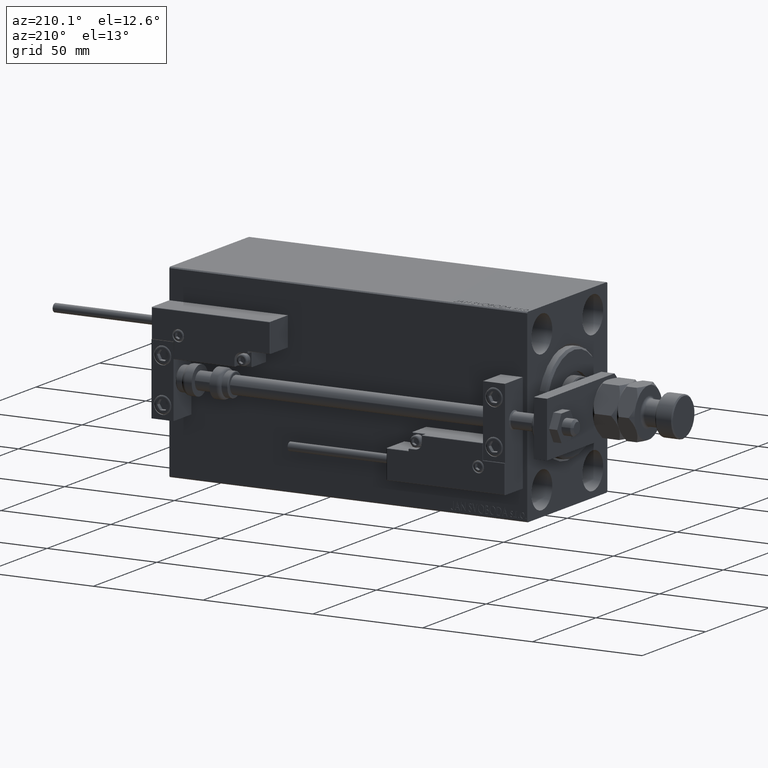
[diagram: clean part render]
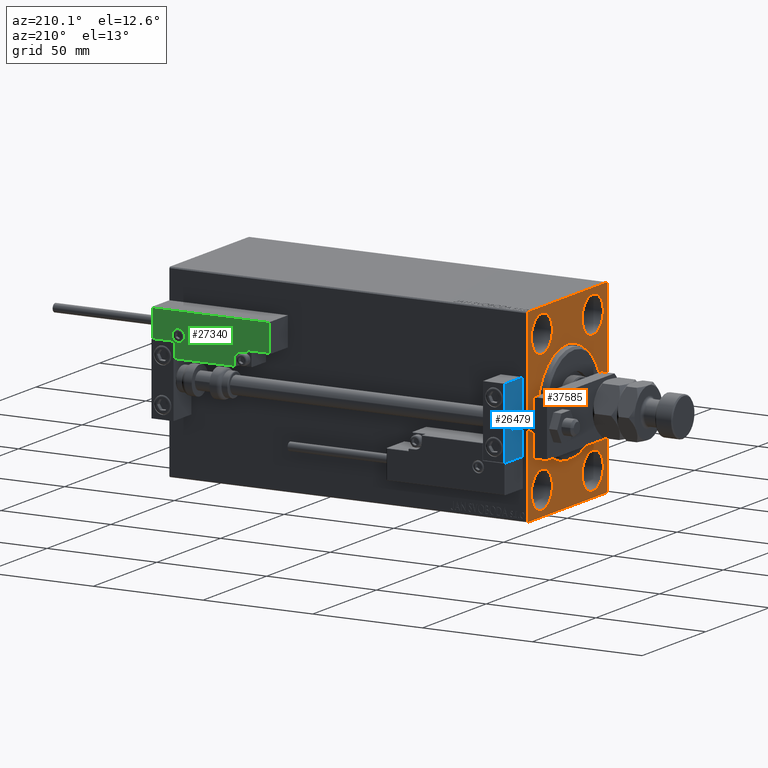
[diagram: same view with three faces highlighted in distinct colors, each labeled with its STEP entity id]
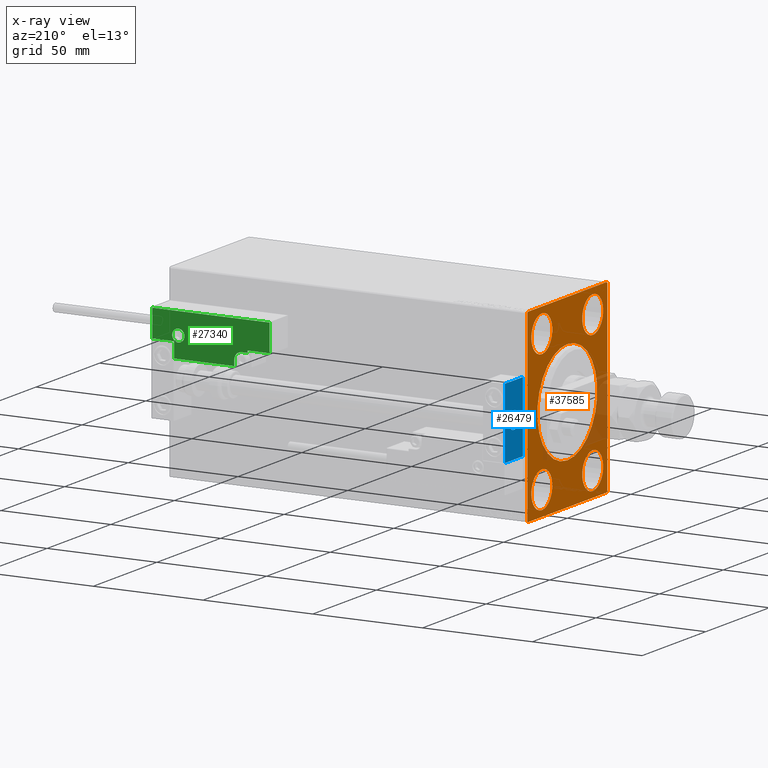
[diagram: x-ray of the same camera — body ghosted, the three highlighted faces saturated]
A machine part, auxiliary view with three faces highlighted in distinct colors.
The next image is the same camera in x-ray (body ghosted, the three faces saturated) — at least one of them is partly hidden behind the body in this view.
Their STEP definitions:

[orange] entity #37585 — the highlighted planar face has unit normal (1, 0, 0).
#541 = LINE ( 'NONE', #12293, #37798 ) ;
#761 = ORIENTED_EDGE ( 'NONE', *, *, #8971, .T. ) ;
#844 = EDGE_CURVE ( 'NONE', #23127, #22835, #20477, .T. ) ;
#959 = DIRECTION ( 'NONE',  ( 0.000000000000000000, 1.000000000000000000, 0.000000000000000000 ) ) ;
#1194 = DIRECTION ( 'NONE',  ( 0.000000000000000000, 0.000000000000000000, -1.000000000000000000 ) ) ;
#1307 = AXIS2_PLACEMENT_3D ( 'NONE', #26769, #7156, #2465 ) ;
#1695 = DIRECTION ( 'NONE',  ( 0.000000000000000000, 0.000000000000000000, 1.000000000000000000 ) ) ;
#1735 = DIRECTION ( 'NONE',  ( 1.000000000000000000, 0.000000000000000000, 0.000000000000000000 ) ) ;
#2032 = CARTESIAN_POINT ( 'NONE',  ( 0.000000000000000000, -31.50000000000000000, -42.00000000000000711 ) ) ;
#2143 = CARTESIAN_POINT ( 'NONE',  ( 0.000000000000000000, 19.99999999999999645, -23.24999999999999289 ) ) ;
#2152 = DIRECTION ( 'NONE',  ( -1.000000000000000000, 0.000000000000000000, 0.000000000000000000 ) ) ;
#2245 = ORIENTED_EDGE ( 'NONE', *, *, #844, .F. ) ;
#2387 = ORIENTED_EDGE ( 'NONE', *, *, #12826, .T. ) ;
#2465 = DIRECTION ( 'NONE',  ( 0.000000000000000000, 0.000000000000000000, 1.000000000000000000 ) ) ;
#3022 = CARTESIAN_POINT ( 'NONE',  ( 0.000000000000000000, 31.50000000000000000, 42.00000000000000711 ) ) ;
#3279 = AXIS2_PLACEMENT_3D ( 'NONE', #50527, #2152, #30115 ) ;
#3449 = VECTOR ( 'NONE', #45848, 1000.000000000000000 ) ;
#4117 = CARTESIAN_POINT ( 'NONE',  ( 0.000000000000000000, 0.000000000000000000, 23.49999999999998934 ) ) ;
#4160 = CARTESIAN_POINT ( 'NONE',  ( 0.000000000000000000, 31.00000000000001421, -42.50000000000000711 ) ) ;
#4171 = CIRCLE ( 'NONE', #9209, 8.249999999999992895 ) ;
#4358 = VERTEX_POINT ( 'NONE', #19491 ) ;
#4579 = EDGE_CURVE ( 'NONE', #19073, #36421, #41183, .T. ) ;
#4856 = CARTESIAN_POINT ( 'NONE',  ( 0.000000000000000000, 0.000000000000000000, 0.000000000000000000 ) ) ;
#5320 = CARTESIAN_POINT ( 'NONE',  ( 0.000000000000000000, 31.50000000000001421, -42.50000000000000711 ) ) ;
#5377 = DIRECTION ( 'NONE',  ( 0.000000000000000000, -1.000000000000000000, -2.202823461557850341E-16 ) ) ;
#5527 = EDGE_LOOP ( 'NONE', ( #2387, #41819 ) ) ;
#6088 = FACE_BOUND ( 'NONE', #25349, .T. ) ;
#6313 = CARTESIAN_POINT ( 'NONE',  ( 0.000000000000000000, 20.00000000000000355, 39.74999999999999289 ) ) ;
#6423 = EDGE_LOOP ( 'NONE', ( #38404, #36780, #15341, #44350, #2245, #29077, #17081, #761 ) ) ;
#6808 = ORIENTED_EDGE ( 'NONE', *, *, #33459, .F. ) ;
#7156 = DIRECTION ( 'NONE',  ( -1.000000000000000000, 0.000000000000000000, 0.000000000000000000 ) ) ;
#7238 = DIRECTION ( 'NONE',  ( 1.000000000000000000, 0.000000000000000000, 0.000000000000000000 ) ) ;
#7306 = AXIS2_PLACEMENT_3D ( 'NONE', #10418, #22450, #42839 ) ;
#7386 = CARTESIAN_POINT ( 'NONE',  ( 0.000000000000000000, -31.00000000000000000, -42.50000000000000711 ) ) ;
#7669 = CARTESIAN_POINT ( 'NONE',  ( 0.000000000000000000, -19.99999999999999645, 31.50000000000000000 ) ) ;
#8021 = LINE ( 'NONE', #44371, #17561 ) ;
#8521 = AXIS2_PLACEMENT_3D ( 'NONE', #30624, #26191, #38476 ) ;
#8879 = CARTESIAN_POINT ( 'NONE',  ( 0.000000000000000000, 31.50000000000001421, -42.00000000000000711 ) ) ;
#8971 = EDGE_CURVE ( 'NONE', #21883, #49028, #22832, .T. ) ;
#9189 = VERTEX_POINT ( 'NONE', #6313 ) ;
#9209 = AXIS2_PLACEMENT_3D ( 'NONE', #36101, #47353, #20394 ) ;
#9300 = ORIENTED_EDGE ( 'NONE', *, *, #16944, .F. ) ;
#9651 = VECTOR ( 'NONE', #22271, 1000.000000000000114 ) ;
#10418 = CARTESIAN_POINT ( 'NONE',  ( 0.000000000000000000, -20.00000000000000355, -31.49999999999999289 ) ) ;
#10881 = CIRCLE ( 'NONE', #15915, 8.249999999999992895 ) ;
#10895 = VERTEX_POINT ( 'NONE', #2143 ) ;
#10913 = CARTESIAN_POINT ( 'NONE',  ( 0.000000000000000000, -19.99999999999999645, 23.25000000000000355 ) ) ;
#11066 = CARTESIAN_POINT ( 'NONE',  ( 0.000000000000000000, -31.50000000000000000, 42.49999999999999289 ) ) ;
#11380 = FACE_BOUND ( 'NONE', #5527, .T. ) ;
#11383 = EDGE_CURVE ( 'NONE', #12581, #21299, #32356, .T. ) ;
#11636 = FACE_BOUND ( 'NONE', #47669, .T. ) ;
#12074 = CARTESIAN_POINT ( 'NONE',  ( 0.000000000000000000, -31.00000000000000000, -42.50000000000000711 ) ) ;
#12293 = CARTESIAN_POINT ( 'NONE',  ( 0.000000000000000000, -31.50000000000000000, 41.99999999999999289 ) ) ;
#12581 = VERTEX_POINT ( 'NONE', #31516 ) ;
#12826 = EDGE_CURVE ( 'NONE', #22625, #4358, #29937, .T. ) ;
#12942 = FACE_BOUND ( 'NONE', #19329, .T. ) ;
#13487 = DIRECTION ( 'NONE',  ( 0.000000000000000000, 0.000000000000000000, -1.000000000000000000 ) ) ;
#14002 = ORIENTED_EDGE ( 'NONE', *, *, #17963, .F. ) ;
#14308 = VECTOR ( 'NONE', #41031, 1000.000000000000114 ) ;
#14916 = CARTESIAN_POINT ( 'NONE',  ( 0.000000000000000000, 31.00000000000000000, 42.50000000000000711 ) ) ;
#14964 = DIRECTION ( 'NONE',  ( -0.000000000000000000, -0.7071067811865474617, 0.7071067811865474617 ) ) ;
#15058 = CARTESIAN_POINT ( 'NONE',  ( 0.000000000000000000, 19.99999999999999645, -31.49999999999999289 ) ) ;
#15246 = EDGE_CURVE ( 'NONE', #21299, #12581, #41696, .T. ) ;
#15341 = ORIENTED_EDGE ( 'NONE', *, *, #4579, .F. ) ;
#15915 = AXIS2_PLACEMENT_3D ( 'NONE', #7669, #51113, #31462 ) ;
#16022 = CIRCLE ( 'NONE', #8521, 8.250000000000000000 ) ;
#16944 = EDGE_CURVE ( 'NONE', #31809, #9189, #4171, .T. ) ;
#17081 = ORIENTED_EDGE ( 'NONE', *, *, #43637, .F. ) ;
#17561 = VECTOR ( 'NONE', #959, 1000.000000000000000 ) ;
#17963 = EDGE_CURVE ( 'NONE', #45207, #22380, #10881, .T. ) ;
#18639 = CARTESIAN_POINT ( 'NONE',  ( 0.000000000000000000, 31.50000000000001421, -42.00000000000000711 ) ) ;
#18719 = DIRECTION ( 'NONE',  ( 0.000000000000000000, 0.000000000000000000, 1.000000000000000000 ) ) ;
#19073 = VERTEX_POINT ( 'NONE', #49999 ) ;
#19319 = CARTESIAN_POINT ( 'NONE',  ( 0.000000000000000000, -20.00000000000000355, -39.74999999999999289 ) ) ;
#19329 = EDGE_LOOP ( 'NONE', ( #36356, #20932 ) ) ;
#19491 = CARTESIAN_POINT ( 'NONE',  ( 0.000000000000000000, 2.877919977996279137E-15, -23.49999999999998934 ) ) ;
#20394 = DIRECTION ( 'NONE',  ( 0.000000000000000000, 0.000000000000000000, 1.000000000000000000 ) ) ;
#20430 = AXIS2_PLACEMENT_3D ( 'NONE', #15058, #50914, #18719 ) ;
#20477 = LINE ( 'NONE', #5320, #3449 ) ;
#20636 = LINE ( 'NONE', #8879, #14308 ) ;
#20932 = ORIENTED_EDGE ( 'NONE', *, *, #15246, .F. ) ;
#21299 = VERTEX_POINT ( 'NONE', #19319 ) ;
#21312 = CARTESIAN_POINT ( 'NONE',  ( 0.000000000000000000, 31.50000000000000000, 42.50000000000000711 ) ) ;
#21883 = VERTEX_POINT ( 'NONE', #12074 ) ;
#22271 = DIRECTION ( 'NONE',  ( -0.000000000000000000, 0.7071067811865474617, -0.7071067811865474617 ) ) ;
#22328 = CARTESIAN_POINT ( 'NONE',  ( 0.000000000000000000, 20.00000000000000355, 31.50000000000000000 ) ) ;
#22380 = VERTEX_POINT ( 'NONE', #10913 ) ;
#22450 = DIRECTION ( 'NONE',  ( -1.000000000000000000, 0.000000000000000000, 0.000000000000000000 ) ) ;
#22625 = VERTEX_POINT ( 'NONE', #4117 ) ;
#22832 = LINE ( 'NONE', #7386, #45672 ) ;
#22835 = VERTEX_POINT ( 'NONE', #3022 ) ;
#23127 = VERTEX_POINT ( 'NONE', #18639 ) ;
#23423 = CARTESIAN_POINT ( 'NONE',  ( 0.000000000000000000, 19.99999999999999645, -39.74999999999999289 ) ) ;
#23811 = DIRECTION ( 'NONE',  ( -0.000000000000000000, 0.7071067811865474617, 0.7071067811865474617 ) ) ;
#23827 = CIRCLE ( 'NONE', #1307, 8.249999999999992895 ) ;
#25349 = EDGE_LOOP ( 'NONE', ( #27135, #9300 ) ) ;
#26191 = DIRECTION ( 'NONE',  ( -1.000000000000000000, 0.000000000000000000, 0.000000000000000000 ) ) ;
#26511 = LINE ( 'NONE', #11066, #32914 ) ;
#26769 = CARTESIAN_POINT ( 'NONE',  ( 0.000000000000000000, -19.99999999999999645, 31.50000000000000000 ) ) ;
#27135 = ORIENTED_EDGE ( 'NONE', *, *, #50163, .F. ) ;
#27429 = ORIENTED_EDGE ( 'NONE', *, *, #50473, .F. ) ;
#29077 = ORIENTED_EDGE ( 'NONE', *, *, #46473, .T. ) ;
#29937 = CIRCLE ( 'NONE', #50820, 23.49999999999998934 ) ;
#30115 = DIRECTION ( 'NONE',  ( 0.000000000000000000, 0.000000000000000000, 1.000000000000000000 ) ) ;
#30127 = DIRECTION ( 'NONE',  ( 1.000000000000000000, 0.000000000000000000, 0.000000000000000000 ) ) ;
#30181 = EDGE_CURVE ( 'NONE', #47025, #49028, #26511, .T. ) ;
#30523 = DIRECTION ( 'NONE',  ( 0.000000000000000000, 0.000000000000000000, -1.000000000000000000 ) ) ;
#30624 = CARTESIAN_POINT ( 'NONE',  ( 0.000000000000000000, 19.99999999999999645, -31.49999999999999289 ) ) ;
#30763 = CARTESIAN_POINT ( 'NONE',  ( 0.000000000000000000, 20.00000000000000355, 23.25000000000000355 ) ) ;
#30943 = DIRECTION ( 'NONE',  ( 0.000000000000000000, 0.000000000000000000, -1.000000000000000000 ) ) ;
#30998 = EDGE_CURVE ( 'NONE', #49143, #10895, #32119, .T. ) ;
#31462 = DIRECTION ( 'NONE',  ( 0.000000000000000000, 0.000000000000000000, 1.000000000000000000 ) ) ;
#31516 = CARTESIAN_POINT ( 'NONE',  ( 0.000000000000000000, -20.00000000000000355, -23.24999999999999289 ) ) ;
#31809 = VERTEX_POINT ( 'NONE', #30763 ) ;
#32119 = CIRCLE ( 'NONE', #20430, 8.250000000000000000 ) ;
#32356 = CIRCLE ( 'NONE', #7306, 8.250000000000000000 ) ;
#32776 = EDGE_CURVE ( 'NONE', #19073, #22835, #42146, .T. ) ;
#32832 = VECTOR ( 'NONE', #5377, 1000.000000000000000 ) ;
#32914 = VECTOR ( 'NONE', #30943, 1000.000000000000000 ) ;
#33459 = EDGE_CURVE ( 'NONE', #22380, #45207, #23827, .T. ) ;
#34223 = CIRCLE ( 'NONE', #48440, 23.49999999999998934 ) ;
#34372 = CIRCLE ( 'NONE', #41028, 8.249999999999992895 ) ;
#34991 = CARTESIAN_POINT ( 'NONE',  ( 0.000000000000000000, -31.50000000000000000, 41.99999999999999289 ) ) ;
#36101 = CARTESIAN_POINT ( 'NONE',  ( 0.000000000000000000, 20.00000000000000355, 31.50000000000000000 ) ) ;
#36356 = ORIENTED_EDGE ( 'NONE', *, *, #11383, .F. ) ;
#36421 = VERTEX_POINT ( 'NONE', #40144 ) ;
#36491 = FACE_OUTER_BOUND ( 'NONE', #6423, .T. ) ;
#36780 = ORIENTED_EDGE ( 'NONE', *, *, #51405, .T. ) ;
#37009 = FACE_BOUND ( 'NONE', #51464, .T. ) ;
#37585 = ADVANCED_FACE ( 'NONE', ( #11380, #11636, #37009, #6088, #12942, #36491 ), #45838, .F. ) ;
#37798 = VECTOR ( 'NONE', #23811, 1000.000000000000114 ) ;
#38404 = ORIENTED_EDGE ( 'NONE', *, *, #30181, .F. ) ;
#38476 = DIRECTION ( 'NONE',  ( 0.000000000000000000, 0.000000000000000000, 1.000000000000000000 ) ) ;
#40144 = CARTESIAN_POINT ( 'NONE',  ( 0.000000000000000000, -31.00000000000000000, 42.49999999999999289 ) ) ;
#41028 = AXIS2_PLACEMENT_3D ( 'NONE', #22328, #45368, #1695 ) ;
#41031 = DIRECTION ( 'NONE',  ( 0.000000000000000000, -0.7071067811865474617, -0.7071067811865474617 ) ) ;
#41183 = LINE ( 'NONE', #21312, #32832 ) ;
#41696 = CIRCLE ( 'NONE', #3279, 8.250000000000000000 ) ;
#41819 = ORIENTED_EDGE ( 'NONE', *, *, #42466, .T. ) ;
#42146 = LINE ( 'NONE', #14916, #9651 ) ;
#42466 = EDGE_CURVE ( 'NONE', #4358, #22625, #34223, .T. ) ;
#42839 = DIRECTION ( 'NONE',  ( 0.000000000000000000, 0.000000000000000000, 1.000000000000000000 ) ) ;
#43637 = EDGE_CURVE ( 'NONE', #21883, #44547, #8021, .T. ) ;
#44350 = ORIENTED_EDGE ( 'NONE', *, *, #32776, .T. ) ;
#44371 = CARTESIAN_POINT ( 'NONE',  ( 0.000000000000000000, -31.50000000000000000, -42.50000000000000711 ) ) ;
#44547 = VERTEX_POINT ( 'NONE', #4160 ) ;
#45207 = VERTEX_POINT ( 'NONE', #47922 ) ;
#45368 = DIRECTION ( 'NONE',  ( -1.000000000000000000, 0.000000000000000000, 0.000000000000000000 ) ) ;
#45672 = VECTOR ( 'NONE', #14964, 1000.000000000000114 ) ;
#45838 = PLANE ( 'NONE',  #46580 ) ;
#45848 = DIRECTION ( 'NONE',  ( 0.000000000000000000, -1.632680918566406300E-16, 1.000000000000000000 ) ) ;
#46473 = EDGE_CURVE ( 'NONE', #23127, #44547, #20636, .T. ) ;
#46580 = AXIS2_PLACEMENT_3D ( 'NONE', #4856, #30127, #1194 ) ;
#47025 = VERTEX_POINT ( 'NONE', #34991 ) ;
#47255 = CARTESIAN_POINT ( 'NONE',  ( 0.000000000000000000, 0.000000000000000000, 0.000000000000000000 ) ) ;
#47353 = DIRECTION ( 'NONE',  ( -1.000000000000000000, 0.000000000000000000, 0.000000000000000000 ) ) ;
#47669 = EDGE_LOOP ( 'NONE', ( #27429, #47773 ) ) ;
#47773 = ORIENTED_EDGE ( 'NONE', *, *, #30998, .F. ) ;
#47922 = CARTESIAN_POINT ( 'NONE',  ( 0.000000000000000000, -19.99999999999999645, 39.74999999999999289 ) ) ;
#48440 = AXIS2_PLACEMENT_3D ( 'NONE', #47255, #7238, #30523 ) ;
#49028 = VERTEX_POINT ( 'NONE', #2032 ) ;
#49143 = VERTEX_POINT ( 'NONE', #23423 ) ;
#49338 = CARTESIAN_POINT ( 'NONE',  ( 0.000000000000000000, 0.000000000000000000, 0.000000000000000000 ) ) ;
#49999 = CARTESIAN_POINT ( 'NONE',  ( 0.000000000000000000, 31.00000000000000000, 42.50000000000000711 ) ) ;
#50163 = EDGE_CURVE ( 'NONE', #9189, #31809, #34372, .T. ) ;
#50473 = EDGE_CURVE ( 'NONE', #10895, #49143, #16022, .T. ) ;
#50527 = CARTESIAN_POINT ( 'NONE',  ( 0.000000000000000000, -20.00000000000000355, -31.49999999999999289 ) ) ;
#50820 = AXIS2_PLACEMENT_3D ( 'NONE', #49338, #1735, #13487 ) ;
#50914 = DIRECTION ( 'NONE',  ( -1.000000000000000000, 0.000000000000000000, 0.000000000000000000 ) ) ;
#51113 = DIRECTION ( 'NONE',  ( -1.000000000000000000, 0.000000000000000000, 0.000000000000000000 ) ) ;
#51405 = EDGE_CURVE ( 'NONE', #47025, #36421, #541, .T. ) ;
#51464 = EDGE_LOOP ( 'NONE', ( #14002, #6808 ) ) ;

[blue] entity #26479 — the highlighted planar face has unit normal (1, 0, -0).
#224 = CARTESIAN_POINT ( 'NONE',  ( 10.00000000000000000, -7.000000000000000000, 15.99999999999999289 ) ) ;
#1355 = CIRCLE ( 'NONE', #49790, 4.000000000000000000 ) ;
#1526 = AXIS2_PLACEMENT_3D ( 'NONE', #27036, #31991, #35912 ) ;
#2665 = LINE ( 'NONE', #42155, #13642 ) ;
#3176 = DIRECTION ( 'NONE',  ( 0.000000000000000000, -1.000000000000000000, 0.000000000000000000 ) ) ;
#3197 = DIRECTION ( 'NONE',  ( -1.000000000000000000, 0.000000000000000000, 0.000000000000000000 ) ) ;
#3856 = VERTEX_POINT ( 'NONE', #23975 ) ;
#4873 = EDGE_CURVE ( 'NONE', #3856, #46866, #2665, .T. ) ;
#5419 = VERTEX_POINT ( 'NONE', #6905 ) ;
#6705 = DIRECTION ( 'NONE',  ( 0.000000000000000000, -1.000000000000000000, 0.000000000000000000 ) ) ;
#6905 = CARTESIAN_POINT ( 'NONE',  ( 10.00000000000000000, 7.000000000000000000, -16.00000000000000711 ) ) ;
#7147 = VERTEX_POINT ( 'NONE', #41267 ) ;
#7228 = CARTESIAN_POINT ( 'NONE',  ( 10.00000000000000000, 0.000000000000000000, 4.000000000000000000 ) ) ;
#7489 = CARTESIAN_POINT ( 'NONE',  ( 10.00000000000000000, 7.000000000000000000, 15.99999999999999289 ) ) ;
#7985 = EDGE_CURVE ( 'NONE', #7147, #31808, #1355, .T. ) ;
#9539 = CARTESIAN_POINT ( 'NONE',  ( 10.00000000000000000, -7.000000000000000000, -16.00000000000000711 ) ) ;
#10894 = LINE ( 'NONE', #7489, #14164 ) ;
#12501 = EDGE_CURVE ( 'NONE', #5419, #17884, #30503, .T. ) ;
#13212 = PLANE ( 'NONE',  #36124 ) ;
#13642 = VECTOR ( 'NONE', #3176, 1000.000000000000000 ) ;
#13744 = DIRECTION ( 'NONE',  ( -1.000000000000000000, 0.000000000000000000, -0.000000000000000000 ) ) ;
#14164 = VECTOR ( 'NONE', #23444, 1000.000000000000000 ) ;
#15180 = ORIENTED_EDGE ( 'NONE', *, *, #4873, .T. ) ;
#16465 = ORIENTED_EDGE ( 'NONE', *, *, #37866, .T. ) ;
#17884 = VERTEX_POINT ( 'NONE', #9539 ) ;
#19122 = ORIENTED_EDGE ( 'NONE', *, *, #34169, .T. ) ;
#19126 = CARTESIAN_POINT ( 'NONE',  ( 10.00000000000000000, 0.000000000000000000, 0.000000000000000000 ) ) ;
#20071 = LINE ( 'NONE', #224, #35450 ) ;
#21594 = CARTESIAN_POINT ( 'NONE',  ( 10.00000000000000000, 0.000000000000000000, 0.000000000000000000 ) ) ;
#23444 = DIRECTION ( 'NONE',  ( 0.000000000000000000, 0.000000000000000000, -1.000000000000000000 ) ) ;
#23641 = ORIENTED_EDGE ( 'NONE', *, *, #12501, .F. ) ;
#23975 = CARTESIAN_POINT ( 'NONE',  ( 10.00000000000000000, 7.000000000000000000, 15.99999999999999289 ) ) ;
#24940 = EDGE_LOOP ( 'NONE', ( #19122, #23641, #34308, #15180 ) ) ;
#26479 = ADVANCED_FACE ( 'NONE', ( #48546, #37027 ), #13212, .F. ) ;
#27036 = CARTESIAN_POINT ( 'NONE',  ( 10.00000000000000000, 0.000000000000000000, 0.000000000000000000 ) ) ;
#27342 = CARTESIAN_POINT ( 'NONE',  ( 10.00000000000000000, 7.000000000000000000, -16.00000000000000711 ) ) ;
#27413 = DIRECTION ( 'NONE',  ( 0.000000000000000000, 0.000000000000000000, -1.000000000000000000 ) ) ;
#30503 = LINE ( 'NONE', #27342, #32387 ) ;
#31808 = VERTEX_POINT ( 'NONE', #7228 ) ;
#31991 = DIRECTION ( 'NONE',  ( -1.000000000000000000, 0.000000000000000000, 0.000000000000000000 ) ) ;
#32387 = VECTOR ( 'NONE', #6705, 1000.000000000000000 ) ;
#34169 = EDGE_CURVE ( 'NONE', #46866, #17884, #20071, .T. ) ;
#34308 = ORIENTED_EDGE ( 'NONE', *, *, #42619, .F. ) ;
#35450 = VECTOR ( 'NONE', #27413, 1000.000000000000000 ) ;
#35912 = DIRECTION ( 'NONE',  ( 0.000000000000000000, 0.000000000000000000, 1.000000000000000000 ) ) ;
#36124 = AXIS2_PLACEMENT_3D ( 'NONE', #21594, #13744, #45663 ) ;
#37027 = FACE_OUTER_BOUND ( 'NONE', #24940, .T. ) ;
#37866 = EDGE_CURVE ( 'NONE', #31808, #7147, #39030, .T. ) ;
#39030 = CIRCLE ( 'NONE', #1526, 4.000000000000000000 ) ;
#41267 = CARTESIAN_POINT ( 'NONE',  ( 10.00000000000000000, 4.898587196589412829E-16, -4.000000000000000000 ) ) ;
#41296 = CARTESIAN_POINT ( 'NONE',  ( 10.00000000000000000, -7.000000000000000000, 15.99999999999999289 ) ) ;
#41475 = EDGE_LOOP ( 'NONE', ( #16465, #44712 ) ) ;
#42155 = CARTESIAN_POINT ( 'NONE',  ( 10.00000000000000000, 7.000000000000000000, 15.99999999999999289 ) ) ;
#42619 = EDGE_CURVE ( 'NONE', #3856, #5419, #10894, .T. ) ;
#43198 = DIRECTION ( 'NONE',  ( 0.000000000000000000, 0.000000000000000000, 1.000000000000000000 ) ) ;
#44712 = ORIENTED_EDGE ( 'NONE', *, *, #7985, .T. ) ;
#45663 = DIRECTION ( 'NONE',  ( -0.000000000000000000, 0.000000000000000000, 1.000000000000000000 ) ) ;
#46866 = VERTEX_POINT ( 'NONE', #41296 ) ;
#48546 = FACE_BOUND ( 'NONE', #41475, .T. ) ;
#49790 = AXIS2_PLACEMENT_3D ( 'NONE', #19126, #3197, #43198 ) ;

[green] entity #27340 — the highlighted planar face has unit normal (0, 1, -0).
#44 = CARTESIAN_POINT ( 'NONE',  ( -14.79999999999994920, 9.800000000000004263, 14.00000000000000000 ) ) ;
#1400 = CARTESIAN_POINT ( 'NONE',  ( 10.69999999999999929, 3.000000000000003109, 14.00000000000000000 ) ) ;
#1429 = ORIENTED_EDGE ( 'NONE', *, *, #1859, .T. ) ;
#1859 = EDGE_CURVE ( 'NONE', #50317, #10846, #21001, .T. ) ;
#1885 = EDGE_CURVE ( 'NONE', #19892, #15780, #16024, .T. ) ;
#1976 = DIRECTION ( 'NONE',  ( 0.000000000000000000, -0.000000000000000000, -1.000000000000000000 ) ) ;
#2123 = VERTEX_POINT ( 'NONE', #24092 ) ;
#2155 = EDGE_CURVE ( 'NONE', #15780, #19892, #13525, .T. ) ;
#2433 = EDGE_CURVE ( 'NONE', #2123, #37951, #28459, .T. ) ;
#3153 = CARTESIAN_POINT ( 'NONE',  ( 26.70000000000006324, 19.70000000000001705, 14.00000000000000000 ) ) ;
#3511 = VERTEX_POINT ( 'NONE', #27958 ) ;
#3562 = CARTESIAN_POINT ( 'NONE',  ( 11.00000000000000000, 0.3000000000000032085, 14.00000000000000000 ) ) ;
#4722 = LINE ( 'NONE', #27991, #22735 ) ;
#5678 = DIRECTION ( 'NONE',  ( 0.000000000000000000, -1.000000000000000000, 0.000000000000000000 ) ) ;
#5700 = CARTESIAN_POINT ( 'NONE',  ( 13.99999999999999822, 6.300000000000001599, 14.00000000000000000 ) ) ;
#6104 = DIRECTION ( 'NONE',  ( 1.000000000000000000, 0.000000000000000000, 0.000000000000000000 ) ) ;
#6651 = CARTESIAN_POINT ( 'NONE',  ( 17.00000000000000000, 6.300000000000003375, 14.00000000000000000 ) ) ;
#7127 = VERTEX_POINT ( 'NONE', #28717 ) ;
#7862 = DIRECTION ( 'NONE',  ( 0.000000000000000000, 1.000000000000000000, -0.000000000000000000 ) ) ;
#8774 = DIRECTION ( 'NONE',  ( 9.912705577010318647E-16, 1.000000000000000000, 0.000000000000000000 ) ) ;
#9280 = LINE ( 'NONE', #6651, #40453 ) ;
#10089 = ORIENTED_EDGE ( 'NONE', *, *, #34461, .T. ) ;
#10846 = VERTEX_POINT ( 'NONE', #33268 ) ;
#12767 = DIRECTION ( 'NONE',  ( -0.000000000000000000, 1.000000000000000000, -0.000000000000000000 ) ) ;
#12983 = ORIENTED_EDGE ( 'NONE', *, *, #2433, .T. ) ;
#13286 = VERTEX_POINT ( 'NONE', #35301 ) ;
#13358 = EDGE_CURVE ( 'NONE', #10846, #43228, #25723, .T. ) ;
#13525 = CIRCLE ( 'NONE', #26891, 2.800000000000000266 ) ;
#14361 = EDGE_CURVE ( 'NONE', #46348, #50317, #43742, .T. ) ;
#14406 = CARTESIAN_POINT ( 'NONE',  ( -11.99999999999994849, 9.800000000000004263, 14.00000000000000000 ) ) ;
#15780 = VERTEX_POINT ( 'NONE', #14406 ) ;
#16024 = CIRCLE ( 'NONE', #31067, 2.800000000000000266 ) ;
#16812 = DIRECTION ( 'NONE',  ( -8.006416042969869188E-16, -1.000000000000000000, 0.000000000000000000 ) ) ;
#17344 = EDGE_LOOP ( 'NONE', ( #32659, #40721 ) ) ;
#17612 = EDGE_CURVE ( 'NONE', #21340, #13286, #21048, .T. ) ;
#18273 = VECTOR ( 'NONE', #48185, 1000.000000000000000 ) ;
#18350 = CARTESIAN_POINT ( 'NONE',  ( -14.79999999999994920, 9.800000000000004263, 14.00000000000000000 ) ) ;
#18854 = CARTESIAN_POINT ( 'NONE',  ( 13.99999999999999822, 3.000000000000002665, 14.00000000000000000 ) ) ;
#19456 = AXIS2_PLACEMENT_3D ( 'NONE', #22667, #26337, #46729 ) ;
#19503 = DIRECTION ( 'NONE',  ( 1.000000000000000000, -0.000000000000000000, 0.000000000000000000 ) ) ;
#19892 = VERTEX_POINT ( 'NONE', #45499 ) ;
#20008 = EDGE_CURVE ( 'NONE', #13286, #7127, #22710, .T. ) ;
#20098 = CARTESIAN_POINT ( 'NONE',  ( 16.69999999999999929, 6.300000000000003375, 14.00000000000000000 ) ) ;
#20148 = DIRECTION ( 'NONE',  ( 1.000000000000000000, 5.782411586589357639E-16, -0.000000000000000000 ) ) ;
#21001 = LINE ( 'NONE', #32262, #44440 ) ;
#21048 = LINE ( 'NONE', #40153, #47628 ) ;
#21340 = VERTEX_POINT ( 'NONE', #20098 ) ;
#22125 = ORIENTED_EDGE ( 'NONE', *, *, #13358, .T. ) ;
#22351 = ORIENTED_EDGE ( 'NONE', *, *, #20008, .T. ) ;
#22667 = CARTESIAN_POINT ( 'NONE',  ( 0.000000000000000000, 0.000000000000000000, 14.00000000000000000 ) ) ;
#22675 = EDGE_CURVE ( 'NONE', #43228, #3511, #49097, .T. ) ;
#22710 = LINE ( 'NONE', #29791, #49443 ) ;
#22735 = VECTOR ( 'NONE', #7862, 1000.000000000000000 ) ;
#22744 = VECTOR ( 'NONE', #12767, 1000.000000000000000 ) ;
#22847 = CARTESIAN_POINT ( 'NONE',  ( -26.69999999999993534, 19.70000000000002061, 14.00000000000000000 ) ) ;
#24024 = CARTESIAN_POINT ( 'NONE',  ( 10.69999999999999929, 3.000000000000003109, 14.00000000000000000 ) ) ;
#24092 = CARTESIAN_POINT ( 'NONE',  ( 10.69999999999999929, 0.3000000000000032085, 14.00000000000000000 ) ) ;
#24362 = DIRECTION ( 'NONE',  ( 1.000000000000000000, 0.000000000000000000, 0.000000000000000000 ) ) ;
#25723 = LINE ( 'NONE', #49809, #45824 ) ;
#26337 = DIRECTION ( 'NONE',  ( -0.000000000000000000, 0.000000000000000000, 1.000000000000000000 ) ) ;
#26890 = DIRECTION ( 'NONE',  ( 1.000000000000000000, -1.734723475976796001E-16, 0.000000000000000000 ) ) ;
#26891 = AXIS2_PLACEMENT_3D ( 'NONE', #44, #28015, #24362 ) ;
#27112 = AXIS2_PLACEMENT_3D ( 'NONE', #18854, #1976, #50790 ) ;
#27340 = ADVANCED_FACE ( 'NONE', ( #38120, #37864 ), #42537, .T. ) ;
#27911 = EDGE_LOOP ( 'NONE', ( #36284, #10089, #12983, #41371, #44258, #35913, #22351, #46705, #51490, #1429, #22125 ) ) ;
#27958 = CARTESIAN_POINT ( 'NONE',  ( -16.69999999999999218, 0.3000000000000032085, 14.00000000000000000 ) ) ;
#27991 = CARTESIAN_POINT ( 'NONE',  ( 26.70000000000006324, 20.00000000000001776, 14.00000000000000000 ) ) ;
#28015 = DIRECTION ( 'NONE',  ( 0.000000000000000000, -0.000000000000000000, -1.000000000000000000 ) ) ;
#28459 = LINE ( 'NONE', #24024, #22744 ) ;
#28717 = CARTESIAN_POINT ( 'NONE',  ( 26.70000000000006324, 7.300000000000007816, 14.00000000000000000 ) ) ;
#29791 = CARTESIAN_POINT ( 'NONE',  ( 27.00000000000006395, 7.300000000000007816, 14.00000000000000000 ) ) ;
#30930 = VERTEX_POINT ( 'NONE', #5700 ) ;
#30960 = VECTOR ( 'NONE', #5678, 1000.000000000000000 ) ;
#31067 = AXIS2_PLACEMENT_3D ( 'NONE', #18350, #37744, #6104 ) ;
#31241 = EDGE_CURVE ( 'NONE', #30930, #21340, #9280, .T. ) ;
#32262 = CARTESIAN_POINT ( 'NONE',  ( -26.69999999999994600, 7.000000000000005329, 14.00000000000000000 ) ) ;
#32659 = ORIENTED_EDGE ( 'NONE', *, *, #2155, .T. ) ;
#33268 = CARTESIAN_POINT ( 'NONE',  ( -26.69999999999994600, 7.300000000000005151, 14.00000000000000000 ) ) ;
#34461 = EDGE_CURVE ( 'NONE', #3511, #2123, #51181, .T. ) ;
#34675 = EDGE_CURVE ( 'NONE', #37951, #30930, #35479, .T. ) ;
#35301 = CARTESIAN_POINT ( 'NONE',  ( 16.69999999999999929, 7.300000000000009592, 14.00000000000000000 ) ) ;
#35479 = CIRCLE ( 'NONE', #27112, 3.299999999999997158 ) ;
#35913 = ORIENTED_EDGE ( 'NONE', *, *, #17612, .T. ) ;
#36284 = ORIENTED_EDGE ( 'NONE', *, *, #22675, .T. ) ;
#37744 = DIRECTION ( 'NONE',  ( 0.000000000000000000, -0.000000000000000000, -1.000000000000000000 ) ) ;
#37864 = FACE_OUTER_BOUND ( 'NONE', #27911, .T. ) ;
#37951 = VERTEX_POINT ( 'NONE', #1400 ) ;
#38120 = FACE_BOUND ( 'NONE', #17344, .T. ) ;
#40153 = CARTESIAN_POINT ( 'NONE',  ( 16.69999999999999929, 7.000000000000009770, 14.00000000000000000 ) ) ;
#40453 = VECTOR ( 'NONE', #20148, 1000.000000000000000 ) ;
#40721 = ORIENTED_EDGE ( 'NONE', *, *, #1885, .T. ) ;
#41371 = ORIENTED_EDGE ( 'NONE', *, *, #34675, .T. ) ;
#42537 = PLANE ( 'NONE',  #19456 ) ;
#43139 = DIRECTION ( 'NONE',  ( 1.000000000000000000, -1.734723475976815230E-16, 0.000000000000000000 ) ) ;
#43228 = VERTEX_POINT ( 'NONE', #44819 ) ;
#43742 = LINE ( 'NONE', #51357, #18273 ) ;
#44258 = ORIENTED_EDGE ( 'NONE', *, *, #31241, .T. ) ;
#44440 = VECTOR ( 'NONE', #16812, 1000.000000000000000 ) ;
#44819 = CARTESIAN_POINT ( 'NONE',  ( -16.69999999999999218, 7.300000000000003375, 14.00000000000000000 ) ) ;
#45499 = CARTESIAN_POINT ( 'NONE',  ( -17.59999999999994813, 9.800000000000004263, 14.00000000000000000 ) ) ;
#45824 = VECTOR ( 'NONE', #43139, 1000.000000000000000 ) ;
#46348 = VERTEX_POINT ( 'NONE', #3153 ) ;
#46705 = ORIENTED_EDGE ( 'NONE', *, *, #51399, .T. ) ;
#46729 = DIRECTION ( 'NONE',  ( 1.000000000000000000, 0.000000000000000000, 0.000000000000000000 ) ) ;
#47628 = VECTOR ( 'NONE', #8774, 1000.000000000000000 ) ;
#48185 = DIRECTION ( 'NONE',  ( -1.000000000000000000, 6.424901762877063495E-17, -0.000000000000000000 ) ) ;
#48839 = CARTESIAN_POINT ( 'NONE',  ( -16.69999999999999218, 3.252606517456513302E-15, 14.00000000000000000 ) ) ;
#48939 = VECTOR ( 'NONE', #19503, 1000.000000000000000 ) ;
#49097 = LINE ( 'NONE', #48839, #30960 ) ;
#49443 = VECTOR ( 'NONE', #26890, 1000.000000000000000 ) ;
#49809 = CARTESIAN_POINT ( 'NONE',  ( -16.99999999999999289, 7.300000000000003375, 14.00000000000000000 ) ) ;
#50317 = VERTEX_POINT ( 'NONE', #22847 ) ;
#50790 = DIRECTION ( 'NONE',  ( 1.000000000000000000, 0.000000000000000000, 0.000000000000000000 ) ) ;
#51181 = LINE ( 'NONE', #3562, #48939 ) ;
#51357 = CARTESIAN_POINT ( 'NONE',  ( -26.99999999999993605, 19.70000000000002061, 14.00000000000000000 ) ) ;
#51399 = EDGE_CURVE ( 'NONE', #7127, #46348, #4722, .T. ) ;
#51490 = ORIENTED_EDGE ( 'NONE', *, *, #14361, .T. ) ;